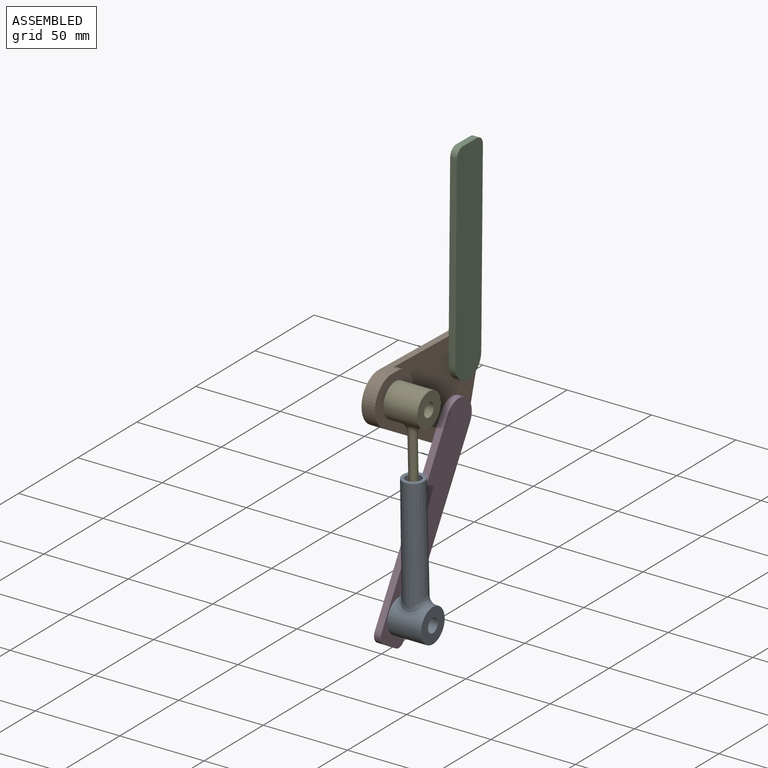
[diagram: assembled view]
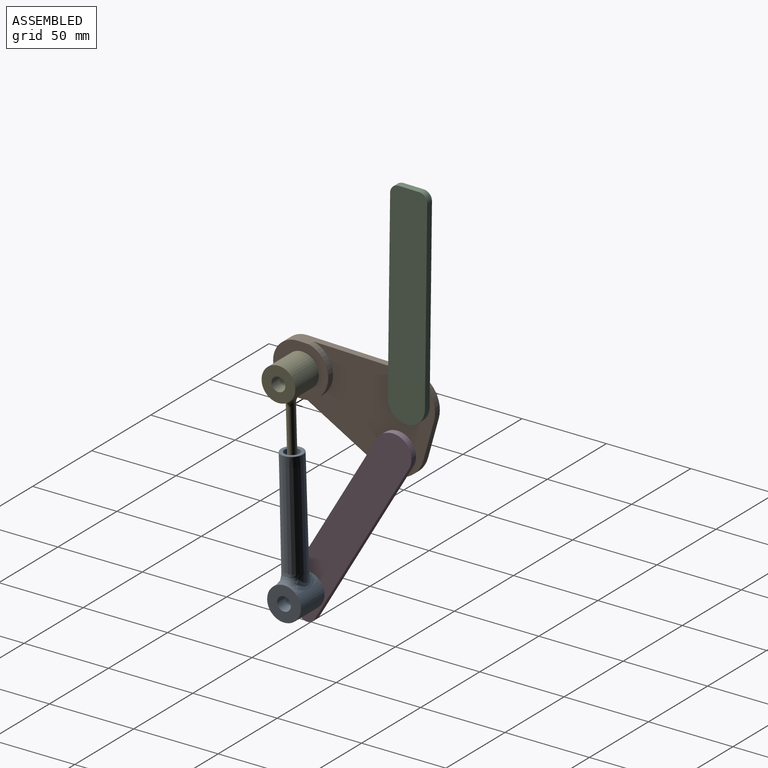
[diagram: assembled view, second angle]
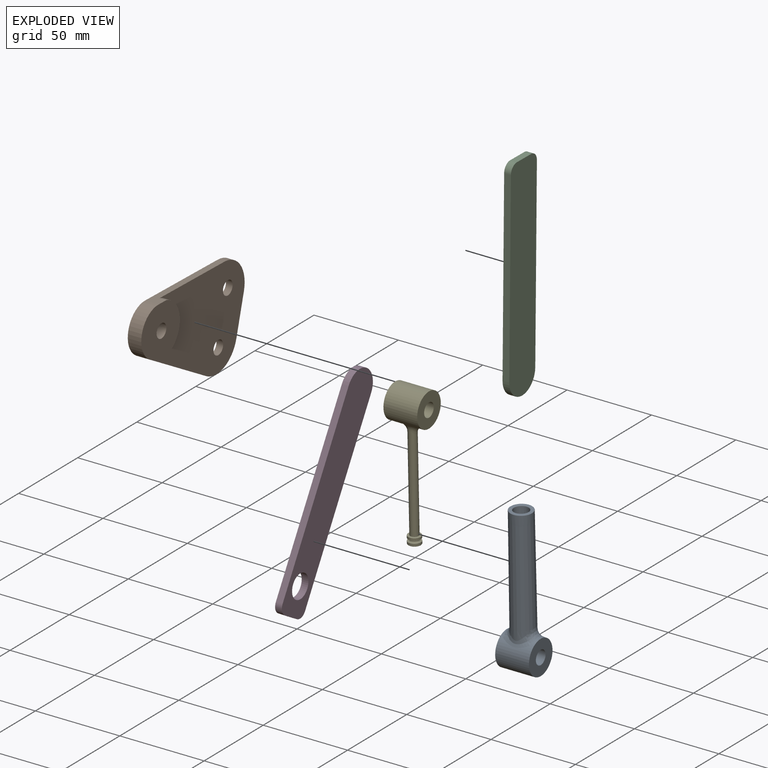
[diagram: exploded view]
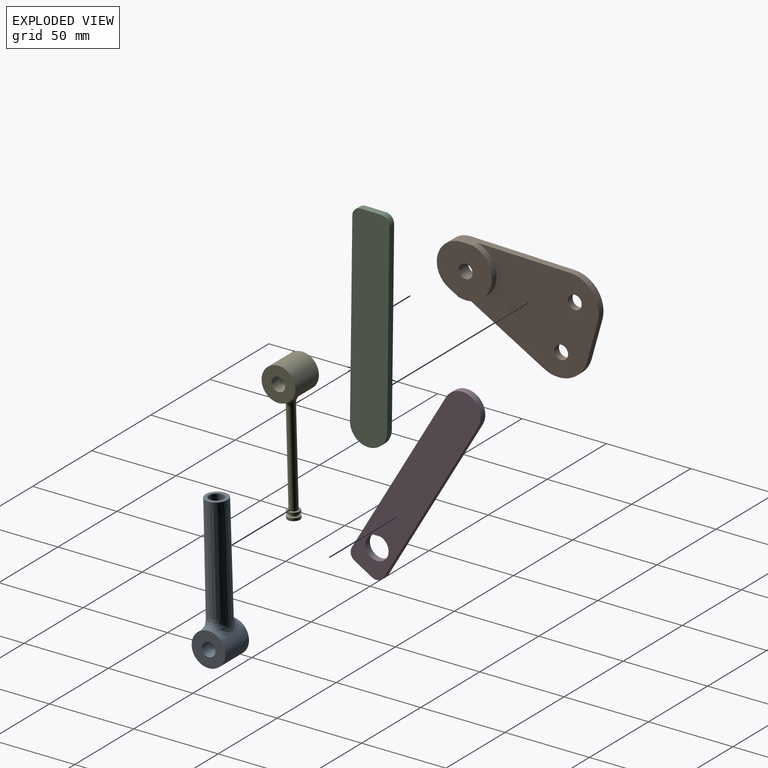
[diagram: exploded view, second angle]
ASSEMBLY  parts=5 mates=5
PART A: 14 faces, bbox 21.4x60.2x77.7 mm
  f0: cylinder r=10mm len=20mm, axis (-1,0,0), area 953.9mm2, adj f2,f3,f11,f12
  f1: cylinder r=4.1mm len=20mm, axis (-1,0,0), area 515.2mm2, adj f2,f3
  f2: plane 20.21x20.21mm, normal (1,0,0), area 261.3mm2, adj f0,f1,f10
  f3: plane 20.21x20.21mm, normal (-1,0,0), area 261.3mm2, adj f0,f1,f13
  f4: cone r=6.84mm half-angle=0.2deg, axis (0,0.57,-0.82), area 2728.6mm2, adj f8,f10,f11,f12,f13
  f5: cone r=4.36mm half-angle=0.2deg, axis (0,0.57,-0.82), area 1914.9mm2, adj f6,f9
  f6: torus R=4.74mm, axis (0,0.57,-0.82), area 16.8mm2, adj f5,f7
  f7: cone r=4.74mm half-angle=89.8deg, axis (0,-0.57,0.82), area 52.9mm2, adj f6,f8
  f8: torus R=6.27mm, axis (0,0.57,-0.82), area 17.6mm2, adj f4,f7
  f9: cylinder r=10mm len=9.3mm, axis (-1,0,0), area 69.9mm2, adj f5
  f10: bspline ~9.6x8.5mm, area 45.5mm2, adj f2,f4,f11,f12
  f11: bspline ~20x8.55mm, area 87.8mm2, adj f0,f4,f10,f13
  f12: bspline ~21.18x8.87mm, area 87.8mm2, adj f0,f4,f10,f13
  f13: bspline ~9.46x8.64mm, area 45.5mm2, adj f3,f4,f11,f12
PART B: 13 faces, bbox 8x92.2x58.6 mm
  f0: plane 23.63x4mm, normal (0,1,0), area 94.5mm2, adj f1,f8,f9,f10
  f1: cylinder r=17.49mm len=21.73mm, axis (-1,0,0), area 127mm2, adj f0,f2,f9,f10
  f2: plane 59.69x14.92mm, normal (0,-0.24,0.97), area 272.8mm2, adj f1,f3,f9,f10,f11,f12
  f3: cylinder r=14.28mm len=27.71mm, axis (-1,0,0), area 303mm2, adj f2,f4,f10,f12
  f4: plane 59.69x14.92mm, normal (0,-0.24,-0.97), area 272.8mm2, adj f3,f8,f9,f10,f11,f12
  f5: cylinder r=4.1mm len=8.2mm, axis (-1,0,0), area 206.1mm2, adj f10,f12
  f6: cylinder r=4.1mm len=8.2mm, axis (-1,0,0), area 103mm2, adj f9,f10
  f7: cylinder r=4.1mm len=8.2mm, axis (-1,0,0), area 103mm2, adj f9,f10
  f8: cylinder r=17.49mm len=21.73mm, axis (-1,0,0), area 127mm2, adj f0,f4,f9,f10
  f9: plane 74.96x58.6mm, normal (1,0,0), area 3014.4mm2, adj f0,f1,f2,f4,f6,f7,f8,f11
  f10: plane 92.24x58.6mm, normal (-1,0,0), area 3749.7mm2, adj f0,f1,f2,f3,f4,f5,f6,f7
  f11: cylinder r=15.47mm len=30.95mm, axis (-1,0,0), area 194.4mm2, adj f2,f4,f9,f12
  f12: plane 32.76x30.95mm, normal (1,0,0), area 735.4mm2, adj f2,f3,f4,f5,f11
PART C: 8 faces, bbox 4x22x126.6 mm
  f0: plane 110.59x4mm, normal (0,-1,0), area 442.3mm2, adj f1,f5,f6,f7
  f1: cylinder r=11mm len=22mm, axis (-1,0,0), area 138.2mm2, adj f0,f2,f6,f7
  f2: plane 110.59x4mm, normal (0,1,0), area 442.3mm2, adj f1,f3,f6,f7
  f3: cylinder r=5mm len=5mm, axis (-1,0,0), area 31.4mm2, adj f2,f4,f6,f7
  f4: plane 12x4mm, normal (0,0,1), area 48mm2, adj f3,f5,f6,f7
  f5: cylinder r=5mm len=5mm, axis (-1,0,0), area 31.4mm2, adj f0,f4,f6,f7
  f6: plane 126.59x22mm, normal (1,0,0), area 2722.3mm2, adj f0,f1,f2,f3,f4,f5
  f7: plane 126.59x22mm, normal (-1,0,0), area 2722.3mm2, adj f0,f1,f2,f3,f4,f5
PART D: 9 faces, bbox 4x22x126.6 mm
  f0: cylinder r=11mm len=22mm, axis (-1,0,0), area 138.2mm2, adj f1,f5,f7,f8
  f1: plane 110.59x4mm, normal (0,-1,0), area 442.3mm2, adj f0,f2,f7,f8
  f2: cylinder r=5mm len=5mm, axis (-1,0,0), area 31.4mm2, adj f1,f3,f7,f8
  f3: plane 12x4mm, normal (0,0,-1), area 48mm2, adj f2,f4,f7,f8
  f4: cylinder r=5mm len=5mm, axis (-1,0,0), area 31.4mm2, adj f3,f5,f7,f8
  f5: plane 110.59x4mm, normal (0,1,0), area 442.3mm2, adj f0,f4,f7,f8
  f6: cylinder r=6.94mm len=13.87mm, axis (-1,0,0), area 174.3mm2, adj f7,f8
  f7: plane 126.59x22mm, normal (1,0,0), area 2571.2mm2, adj f0,f1,f2,f3,f4,f5,f6
  f8: plane 126.59x22mm, normal (-1,0,0), area 2571.2mm2, adj f0,f1,f2,f3,f4,f5,f6
PART E: 13 faces, bbox 20x56.1x73.7 mm
  f0: cylinder r=10mm len=20mm, axis (-1,0,0), area 1134.7mm2, adj f2,f3,f12
  f1: cylinder r=4.1mm len=20mm, axis (-1,0,0), area 515.2mm2, adj f2,f3
  f2: plane 20x20mm, normal (1,0,0), area 261.3mm2, adj f0,f1
  f3: plane 20x20mm, normal (-1,0,0), area 261.3mm2, adj f0,f1
  f4: cylinder r=2.5mm len=49.84mm, axis (0,0.57,-0.82), area 883.1mm2, adj f6,f12
  f5: plane 6.82x5.59mm, normal (0,0.57,-0.82), area 36.5mm2, adj f11
  f6: cone r=3.49mm half-angle=89.8deg, axis (0,-0.57,0.82), area 18.6mm2, adj f4,f7
  f7: torus R=3.49mm, axis (0,0.57,-0.82), area 10mm2, adj f6,f8
  f8: cone r=3.77mm half-angle=0.2deg, axis (0,0.57,-0.82), area 28.9mm2, adj f7,f9
  f9: torus R=3.38mm, axis (0,0.57,-0.82), area 68.7mm2, adj f8,f10
  f10: cone r=3.78mm half-angle=0.2deg, axis (0,0.57,-0.82), area 30mm2, adj f9,f11
  f11: torus R=3.41mm, axis (0,0.57,-0.82), area 13.6mm2, adj f5,f10
  f12: bspline ~15.02x8.66mm, area 157.8mm2, adj f0,f4
PLACE A rot(axis=(-1,0,0),33.2deg) t=(0,6.42,2.66)mm
PLACE B rot(axis=(-1,0,0),15.5deg) t=(0,15.7,-1.56)mm
PLACE C rot(axis=(-1,0,0),0.7deg) t=(0,-0.19,0.15)mm fixed
PLACE D rot(axis=(-1,0,0),30.3deg) t=(0,1.21,5.17)mm
PLACE E rot(axis=(-1,0,0),33.2deg) t=(0,7.08,-20.56)mm
MATE revolute C.f1 <-> B.f6  axis (-1,0,0) through (4,12.14,15)mm
MATE revolute B.f7 <-> D.f0  axis (1,0,0) through (4,4.11,-13.9)mm
MATE slider E.f6 <-> A.f7  axis (0,0.03,-1) through (18,-47.55,-58.36)mm
MATE revolute E.f1 <-> B.f5  axis (-1,0,0) through (8,-49.68,16.61)mm
MATE revolute A.f0 <-> D.f6  axis (-1,0,0) through (8,-46.36,-100.11)mm
